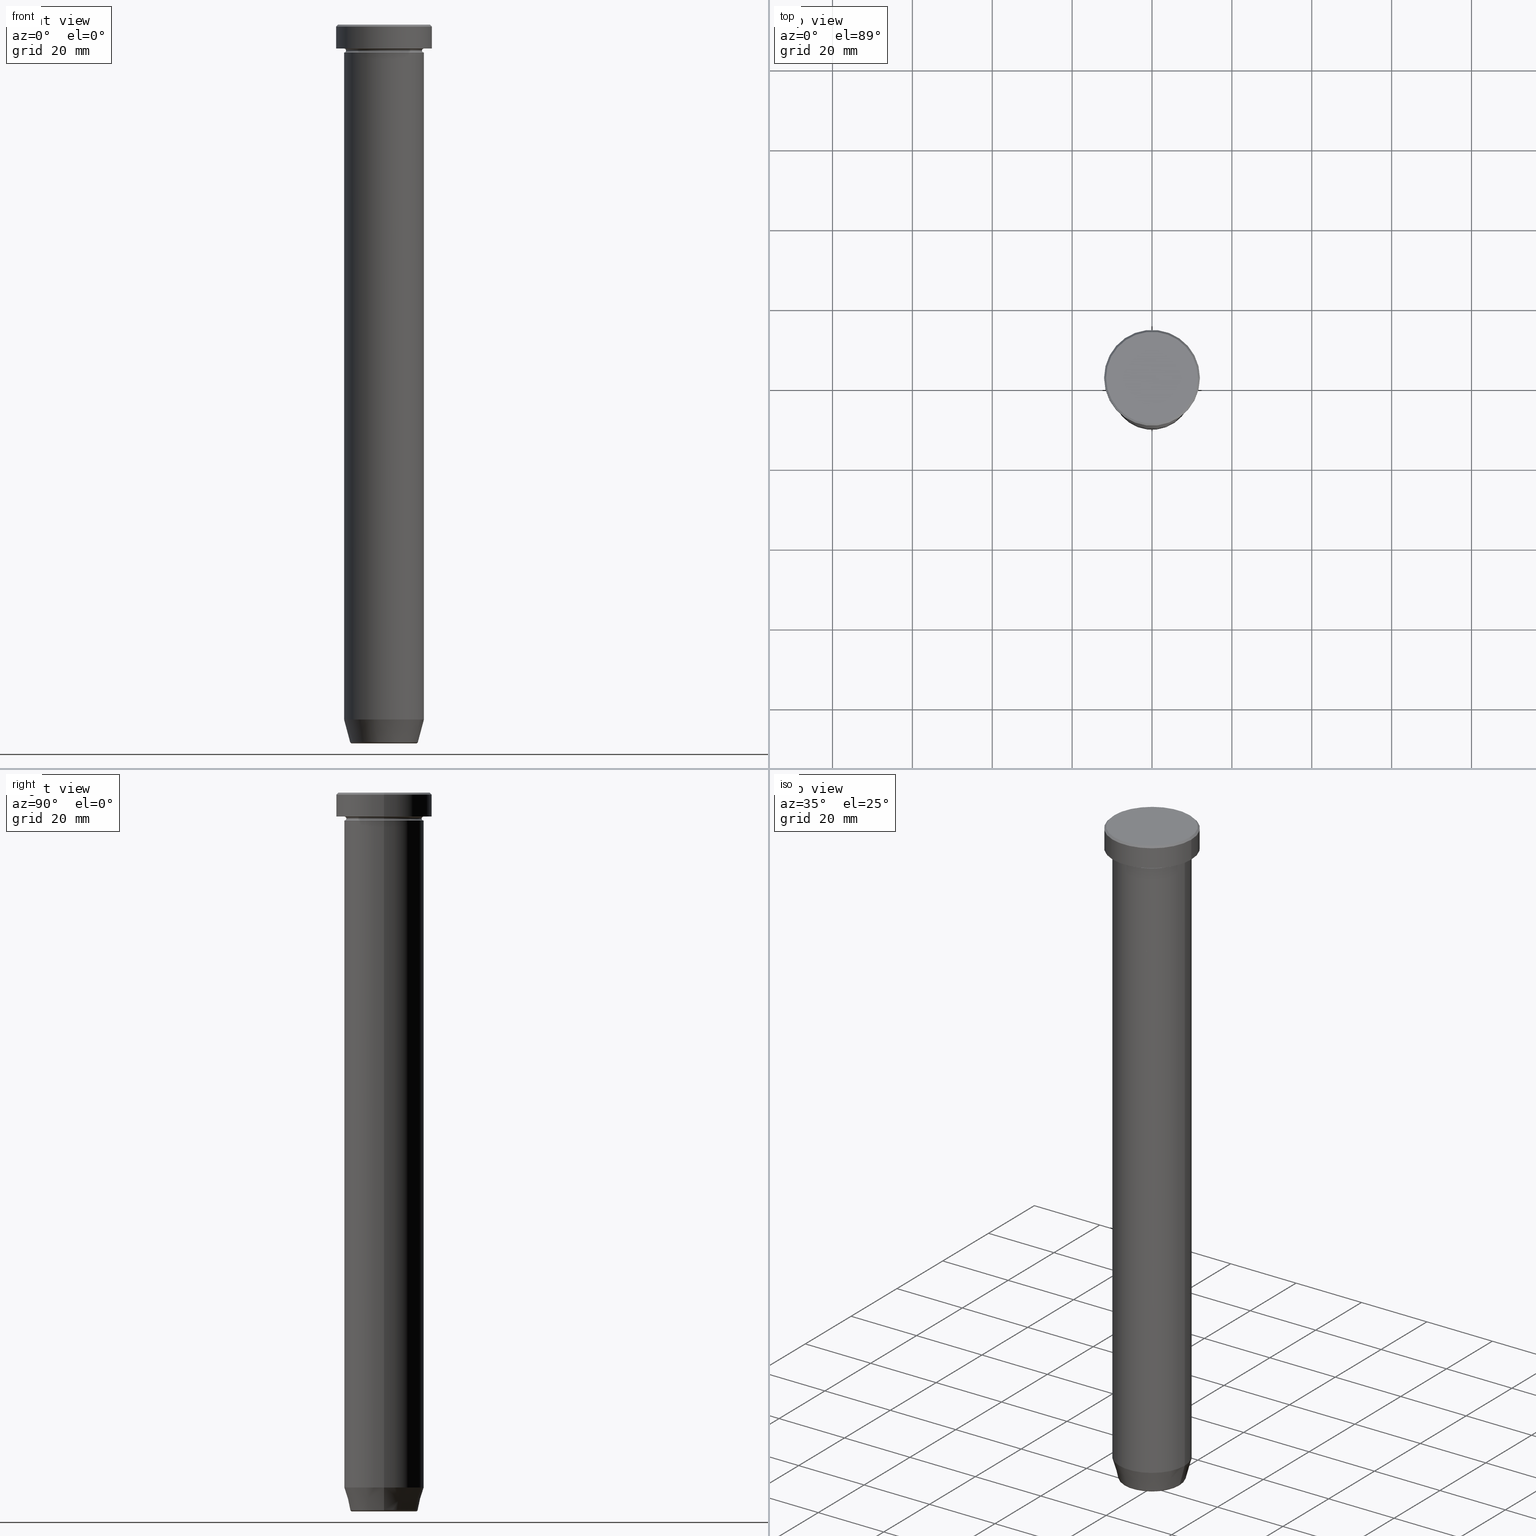
[diagram: canonical four-view strip — front | top / right | iso, engineering-drawing reading convention]
A machine part, canonical four-view strip (front | top / right | iso — engineering-drawing reading convention). The complete STEP part file that produces these views, byte-faithful:
ISO-10303-21;
HEADER;
FILE_DESCRIPTION (( 'STEP AP203' ),
    '1' );
FILE_NAME ('a374.STEP',
    '2024-01-02T20:47:37',
    ( '' ),
    ( '' ),
    'SwSTEP 2.0',
    'SolidWorks 2019',
    '' );
FILE_SCHEMA (( 'CONFIG_CONTROL_DESIGN' ));
ENDSEC;

DATA;
#1 = CARTESIAN_POINT ( 'NONE',  ( -8.008641351423783306, 1.010348648938493172E-15, -180.0000000000000000 ) ) ;
#2 = FACE_OUTER_BOUND ( 'NONE', #112, .T. ) ;
#3 = FACE_OUTER_BOUND ( 'NONE', #350, .T. ) ;
#4 = ADVANCED_FACE ( 'NONE', ( #260 ), #434, .T. ) ;
#5 = DIRECTION ( 'NONE',  ( 0.000000000000000000, 0.000000000000000000, -1.000000000000000000 ) ) ;
#6 = AXIS2_PLACEMENT_3D ( 'NONE', #343, #294, #390 ) ;
#7 = CARTESIAN_POINT ( 'NONE',  ( 0.000000000000000000, 0.000000000000000000, -5.999999999999999112 ) ) ;
#8 = DATE_AND_TIME ( #99, #182 ) ;
#9 = FACE_OUTER_BOUND ( 'NONE', #159, .T. ) ;
#10 = EDGE_LOOP ( 'NONE', ( #580, #222 ) ) ;
#11 = LINE ( 'NONE', #521, #52 ) ;
#12 = DIRECTION ( 'NONE',  ( 1.000000000000000000, 0.000000000000000000, 0.000000000000000000 ) ) ;
#13 = DIRECTION ( 'NONE',  ( -0.2588190451025209060, 3.169619151431766790E-17, 0.9659258262890682012 ) ) ;
#14 = EDGE_LOOP ( 'NONE', ( #49, #337 ) ) ;
#15 = DIRECTION ( 'NONE',  ( 1.000000000000000000, 0.000000000000000000, 0.000000000000000000 ) ) ;
#16 = VECTOR ( 'NONE', #281, 1000.000000000000000 ) ;
#17 = AXIS2_PLACEMENT_3D ( 'NONE', #179, #90, #456 ) ;
#18 = CARTESIAN_POINT ( 'NONE',  ( 0.000000000000000000, 0.000000000000000000, -6.999999999999999112 ) ) ;
#19 = CARTESIAN_POINT ( 'NONE',  ( 0.000000000000000000, 0.000000000000000000, -6.499999999999999112 ) ) ;
#20 = EDGE_CURVE ( 'NONE', #353, #210, #567, .T. ) ;
#21 = PERSON_AND_ORGANIZATION ( #129, #435 ) ;
#22 = ORIENTED_EDGE ( 'NONE', *, *, #582, .F. ) ;
#23 = CC_DESIGN_PERSON_AND_ORGANIZATION_ASSIGNMENT ( #498, #174, ( #134 ) ) ;
#24 = AXIS2_PLACEMENT_3D ( 'NONE', #101, #61, #12 ) ;
#25 = CIRCLE ( 'NONE', #166, 10.00000000000000000 ) ;
#26 = ORIENTED_EDGE ( 'NONE', *, *, #212, .F. ) ;
#27 = DIRECTION ( 'NONE',  ( -1.224646799147353207E-16, 1.000000000000000000, 0.000000000000000000 ) ) ;
#28 = DIRECTION ( 'NONE',  ( 0.000000000000000000, 0.000000000000000000, -1.000000000000000000 ) ) ;
#29 = EDGE_CURVE ( 'NONE', #359, #407, #262, .T. ) ;
#30 = EDGE_LOOP ( 'NONE', ( #342, #541, #298, #158 ) ) ;
#31 = DIRECTION ( 'NONE',  ( -0.000000000000000000, -0.000000000000000000, 1.000000000000000000 ) ) ;
#32 = CARTESIAN_POINT ( 'NONE',  ( 0.000000000000000000, 0.000000000000000000, -179.5000000000000000 ) ) ;
#33 = ORIENTED_EDGE ( 'NONE', *, *, #310, .F. ) ;
#34 = CIRCLE ( 'NONE', #72, 10.00000000000000000 ) ;
#35 = EDGE_CURVE ( 'NONE', #389, #347, #422, .T. ) ;
#36 = FACE_OUTER_BOUND ( 'NONE', #14, .T. ) ;
#37 = COORDINATED_UNIVERSAL_TIME_OFFSET ( 1, 0, .AHEAD. ) ;
#38 = DIRECTION ( 'NONE',  ( 0.000000000000000000, 0.000000000000000000, -1.000000000000000000 ) ) ;
#39 = DIRECTION ( 'NONE',  ( 1.000000000000000000, 0.000000000000000000, 0.000000000000000000 ) ) ;
#40 = PRODUCT_DEFINITION_FORMATION_WITH_SPECIFIED_SOURCE ( 'LIBOVOLN�', '', #336, .NOT_KNOWN. ) ;
#41 = CIRCLE ( 'NONE', #202, 10.00000000000000000 ) ;
#42 = DATE_AND_TIME ( #84, #379 ) ;
#43 = CARTESIAN_POINT ( 'NONE',  ( 0.000000000000000000, 0.000000000000000000, -6.499999999999999112 ) ) ;
#44 = ADVANCED_FACE ( 'NONE', ( #476 ), #283, .T. ) ;
#45 = FACE_OUTER_BOUND ( 'NONE', #348, .T. ) ;
#46 = FACE_OUTER_BOUND ( 'NONE', #502, .T. ) ;
#47 = DIRECTION ( 'NONE',  ( 1.000000000000000000, 0.000000000000000000, 0.000000000000000000 ) ) ;
#48 = DIRECTION ( 'NONE',  ( -1.000000000000000000, 0.000000000000000000, 0.000000000000000000 ) ) ;
#49 = ORIENTED_EDGE ( 'NONE', *, *, #64, .F. ) ;
#50 = CARTESIAN_POINT ( 'NONE',  ( -11.49999999999999467, 0.000000000000000000, 0.000000000000000000 ) ) ;
#51 = DIRECTION ( 'NONE',  ( -1.000000000000000000, 0.000000000000000000, -0.000000000000000000 ) ) ;
#52 = VECTOR ( 'NONE', #98, 1000.000000000000000 ) ;
#53 = EDGE_CURVE ( 'NONE', #532, #120, #41, .T. ) ;
#54 = CIRCLE ( 'NONE', #324, 10.00000000000000000 ) ;
#55 = CARTESIAN_POINT ( 'NONE',  ( 10.00000000000000000, 0.000000000000000000, -6.499999999999999112 ) ) ;
#56 = CARTESIAN_POINT ( 'NONE',  ( 0.000000000000000000, 0.000000000000000000, 0.000000000000000000 ) ) ;
#57 = DIRECTION ( 'NONE',  ( 0.000000000000000000, 0.000000000000000000, -1.000000000000000000 ) ) ;
#58 = ORIENTED_EDGE ( 'NONE', *, *, #484, .T. ) ;
#59 = FACE_OUTER_BOUND ( 'NONE', #335, .T. ) ;
#60 = DIRECTION ( 'NONE',  ( -0.000000000000000000, -0.000000000000000000, 1.000000000000000000 ) ) ;
#61 = DIRECTION ( 'NONE',  ( 0.000000000000000000, 0.000000000000000000, -1.000000000000000000 ) ) ;
#62 = CIRCLE ( 'NONE', #391, 12.00000000000000000 ) ;
#63 = LOCAL_TIME ( 21, 47, 37.00000000000000000, #598 ) ;
#64 = EDGE_CURVE ( 'NONE', #490, #226, #374, .T. ) ;
#65 =( LENGTH_UNIT ( ) NAMED_UNIT ( * ) SI_UNIT ( .MILLI., .METRE. ) );
#66 = ORIENTED_EDGE ( 'NONE', *, *, #292, .F. ) ;
#67 = EDGE_LOOP ( 'NONE', ( #338, #388, #274, #253 ) ) ;
#68 = ORIENTED_EDGE ( 'NONE', *, *, #227, .F. ) ;
#69 = DIRECTION ( 'NONE',  ( -0.000000000000000000, -0.000000000000000000, 1.000000000000000000 ) ) ;
#70 = APPROVAL_STATUS ( 'not_yet_approved' ) ;
#71 = EDGE_CURVE ( 'NONE', #515, #91, #513, .T. ) ;
#72 = AXIS2_PLACEMENT_3D ( 'NONE', #186, #305, #397 ) ;
#73 = AXIS2_PLACEMENT_3D ( 'NONE', #242, #236, #576 ) ;
#74 = ORIENTED_EDGE ( 'NONE', *, *, #396, .T. ) ;
#75 = DIRECTION ( 'NONE',  ( 1.000000000000000000, 0.000000000000000000, 0.000000000000000000 ) ) ;
#76 = ORIENTED_EDGE ( 'NONE', *, *, #280, .T. ) ;
#77 = ORIENTED_EDGE ( 'NONE', *, *, #582, .T. ) ;
#78 = DIRECTION ( 'NONE',  ( -1.000000000000000000, -1.224646799147353454E-16, 0.000000000000000000 ) ) ;
#79 = EDGE_LOOP ( 'NONE', ( #583, #257, #249, #432 ) ) ;
#80 = LOCAL_TIME ( 21, 47, 37.00000000000000000, #117 ) ;
#81 = ORIENTED_EDGE ( 'NONE', *, *, #29, .F. ) ;
#82 = DIRECTION ( 'NONE',  ( 0.000000000000000000, -0.000000000000000000, 1.000000000000000000 ) ) ;
#83 = ADVANCED_FACE ( 'NONE', ( #528 ), #279, .T. ) ;
#84 = CALENDAR_DATE ( 2024, 2, 1 ) ;
#85 = FACE_OUTER_BOUND ( 'NONE', #496, .T. ) ;
#86 = DIRECTION ( 'NONE',  ( 1.000000000000000000, 0.000000000000000000, 0.000000000000000000 ) ) ;
#87 = CARTESIAN_POINT ( 'NONE',  ( -12.00000000000000000, 1.469576158976823947E-15, 0.000000000000000000 ) ) ;
#88 = ADVANCED_FACE ( 'NONE', ( #147 ), #318, .T. ) ;
#89 = DIRECTION ( 'NONE',  ( 1.000000000000000000, 0.000000000000000000, 0.000000000000000000 ) ) ;
#90 = DIRECTION ( 'NONE',  ( -0.000000000000000000, -0.000000000000000000, 1.000000000000000000 ) ) ;
#91 = VERTEX_POINT ( 'NONE', #372 ) ;
#92 = AXIS2_PLACEMENT_3D ( 'NONE', #139, #5, #448 ) ;
#93 = TOROIDAL_SURFACE ( 'NONE', #110, 10.00000000000000000, 0.5000000000000000000 ) ;
#94 = PLANE ( 'NONE',  #92 ) ;
#95 = APPROVAL ( #70, 'NEUR�EN�' ) ;
#96 = DIRECTION ( 'NONE',  ( 1.224646799147353207E-16, 1.000000000000000000, 0.000000000000000000 ) ) ;
#97 = ORIENTED_EDGE ( 'NONE', *, *, #280, .F. ) ;
#98 = DIRECTION ( 'NONE',  ( 0.2588190451025209060, 0.000000000000000000, 0.9659258262890682012 ) ) ;
#99 = CALENDAR_DATE ( 2024, 2, 1 ) ;
#100 = FACE_BOUND ( 'NONE', #315, .T. ) ;
#101 = CARTESIAN_POINT ( 'NONE',  ( 0.000000000000000000, 0.000000000000000000, -0.5000000000000056621 ) ) ;
#102 = CARTESIAN_POINT ( 'NONE',  ( 0.000000000000000000, 0.000000000000000000, 0.000000000000000000 ) ) ;
#103 = APPROVAL_PERSON_ORGANIZATION ( #483, #95, #433 ) ;
#104 = ADVANCED_FACE ( 'NONE', ( #150 ), #401, .T. ) ;
#105 = CIRCLE ( 'NONE', #514, 9.999999999999998224 ) ;
#106 = DIRECTION ( 'NONE',  ( 1.224646799147353207E-16, 1.000000000000000000, 0.000000000000000000 ) ) ;
#107 = FACE_OUTER_BOUND ( 'NONE', #67, .T. ) ;
#108 = EDGE_CURVE ( 'NONE', #515, #389, #156, .T. ) ;
#109 = AXIS2_PLACEMENT_3D ( 'NONE', #102, #60, #527 ) ;
#110 = AXIS2_PLACEMENT_3D ( 'NONE', #306, #137, #48 ) ;
#111 = DIRECTION ( 'NONE',  ( -1.000000000000000000, 0.000000000000000000, 0.000000000000000000 ) ) ;
#112 = EDGE_LOOP ( 'NONE', ( #578, #440, #574, #22 ) ) ;
#113 = VERTEX_POINT ( 'NONE', #1 ) ;
#114 = DIRECTION ( 'NONE',  ( 1.000000000000000000, 0.000000000000000000, 0.000000000000000000 ) ) ;
#115 = EDGE_CURVE ( 'NONE', #207, #210, #550, .T. ) ;
#116 = DIRECTION ( 'NONE',  ( 0.000000000000000000, 0.000000000000000000, -1.000000000000000000 ) ) ;
#117 = COORDINATED_UNIVERSAL_TIME_OFFSET ( 1, 0, .AHEAD. ) ;
#118 = VECTOR ( 'NONE', #175, 1000.000000000000000 ) ;
#119 = CIRCLE ( 'NONE', #144, 0.5000000000000004441 ) ;
#120 = VERTEX_POINT ( 'NONE', #259 ) ;
#121 = CARTESIAN_POINT ( 'NONE',  ( -10.00000000000000000, 0.000000000000000000, -6.000000000000000000 ) ) ;
#122 = ORIENTED_EDGE ( 'NONE', *, *, #108, .F. ) ;
#123 = DIRECTION ( 'NONE',  ( -0.000000000000000000, -0.000000000000000000, 1.000000000000000000 ) ) ;
#124 = DATE_TIME_ROLE ( 'creation_date' ) ;
#125 = ORIENTED_EDGE ( 'NONE', *, *, #181, .F. ) ;
#126 = ADVANCED_FACE ( 'NONE', ( #46 ), #131, .F. ) ;
#127 = ORIENTED_EDGE ( 'NONE', *, *, #310, .T. ) ;
#128 = ORIENTED_EDGE ( 'NONE', *, *, #35, .F. ) ;
#129 = PERSON ( 'NEUR�EN�', 'NEUR�EN�', 'NEUR�EN�', ('NEUR�EN�'), ('NEUR�EN�'), ('NEUR�EN�') ) ;
#130 = DIRECTION ( 'NONE',  ( 0.000000000000000000, -0.000000000000000000, 1.000000000000000000 ) ) ;
#131 = TOROIDAL_SURFACE ( 'NONE', #499, 10.00000000000000000, 0.5000000000000000000 ) ;
#132 = ORIENTED_EDGE ( 'NONE', *, *, #415, .F. ) ;
#133 = DIRECTION ( 'NONE',  ( -0.000000000000000000, -0.000000000000000000, 1.000000000000000000 ) ) ;
#134 = PRODUCT_DEFINITION ( 'NEZN�M�', '', #40, #328 ) ;
#135 = AXIS2_PLACEMENT_3D ( 'NONE', #370, #469, #111 ) ;
#136 = AXIS2_PLACEMENT_3D ( 'NONE', #419, #311, #47 ) ;
#137 = DIRECTION ( 'NONE',  ( 0.000000000000000000, 0.000000000000000000, -1.000000000000000000 ) ) ;
#138 = EDGE_CURVE ( 'NONE', #226, #516, #255, .T. ) ;
#139 = CARTESIAN_POINT ( 'NONE',  ( 0.000000000000000000, 10.00000000000000000, -30.00000000000000000 ) ) ;
#140 = DIRECTION ( 'NONE',  ( -0.000000000000000000, -0.000000000000000000, 1.000000000000000000 ) ) ;
#141 = DIRECTION ( 'NONE',  ( 0.000000000000000000, 0.000000000000000000, -1.000000000000000000 ) ) ;
#142 = CC_DESIGN_DATE_AND_TIME_ASSIGNMENT ( #42, #367, ( #512 ) ) ;
#143 = CLOSED_SHELL ( 'NONE', ( #205, #4, #547, #304, #44, #384, #154, #363 ) ) ;
#144 = AXIS2_PLACEMENT_3D ( 'NONE', #561, #96, #517 ) ;
#145 = DIRECTION ( 'NONE',  ( -1.000000000000000000, 0.000000000000000000, 0.000000000000000000 ) ) ;
#146 = CARTESIAN_POINT ( 'NONE',  ( -11.49999999999999467, 0.000000000000000000, 0.000000000000000000 ) ) ;
#147 = FACE_OUTER_BOUND ( 'NONE', #252, .T. ) ;
#148 = ADVANCED_FACE ( 'NONE', ( #264 ), #94, .T. ) ;
#149 = LINE ( 'NONE', #564, #16 ) ;
#150 = FACE_OUTER_BOUND ( 'NONE', #303, .T. ) ;
#151 = CYLINDRICAL_SURFACE ( 'NONE', #383, 10.00000000000000000 ) ;
#152 = CIRCLE ( 'NONE', #487, 10.00000000000000000 ) ;
#153 = TOROIDAL_SURFACE ( 'NONE', #488, 10.00000000000000000, 0.5000000000000000000 ) ;
#154 = ADVANCED_FACE ( 'NONE', ( #216 ), #225, .F. ) ;
#155 = CARTESIAN_POINT ( 'NONE',  ( 0.000000000000000000, 0.000000000000000000, -6.000000000000000000 ) ) ;
#156 = CIRCLE ( 'NONE', #411, 0.5000000000000004441 ) ;
#157 = AXIS2_PLACEMENT_3D ( 'NONE', #362, #503, #313 ) ;
#158 = ORIENTED_EDGE ( 'NONE', *, *, #273, .F. ) ;
#159 = EDGE_LOOP ( 'NONE', ( #287, #386, #544, #209 ) ) ;
#160 = DIRECTION ( 'NONE',  ( -0.000000000000000000, -0.000000000000000000, 1.000000000000000000 ) ) ;
#161 = ORIENTED_EDGE ( 'NONE', *, *, #573, .F. ) ;
#162 = SECURITY_CLASSIFICATION_LEVEL ( 'unclassified' ) ;
#163 = VERTEX_POINT ( 'NONE', #301 ) ;
#164 = CALENDAR_DATE ( 2024, 2, 1 ) ;
#165 = AXIS2_PLACEMENT_3D ( 'NONE', #425, #414, #145 ) ;
#166 = AXIS2_PLACEMENT_3D ( 'NONE', #299, #482, #290 ) ;
#167 = ORIENTED_EDGE ( 'NONE', *, *, #403, .F. ) ;
#168 = ORIENTED_EDGE ( 'NONE', *, *, #273, .T. ) ;
#169 = CARTESIAN_POINT ( 'NONE',  ( 8.008641351423783306, 0.000000000000000000, -180.0000000000000000 ) ) ;
#170 = ORIENTED_EDGE ( 'NONE', *, *, #71, .F. ) ;
#171 = CARTESIAN_POINT ( 'NONE',  ( 0.000000000000000000, 0.000000000000000000, -180.0000000000000000 ) ) ;
#172 = ORIENTED_EDGE ( 'NONE', *, *, #35, .T. ) ;
#173 = CARTESIAN_POINT ( 'NONE',  ( -9.999999999999998224, 1.224646799147353059E-15, 0.000000000000000000 ) ) ;
#174 = PERSON_AND_ORGANIZATION_ROLE ( 'creator' ) ;
#175 = DIRECTION ( 'NONE',  ( -0.000000000000000000, -0.000000000000000000, 1.000000000000000000 ) ) ;
#176 = CC_DESIGN_APPROVAL ( #377, ( #512 ) ) ;
#177 = VECTOR ( 'NONE', #361, 1000.000000000000114 ) ;
#178 = CARTESIAN_POINT ( 'NONE',  ( 0.000000000000000000, 0.000000000000000000, -30.00000000000000000 ) ) ;
#179 = CARTESIAN_POINT ( 'NONE',  ( 0.000000000000000000, 0.000000000000000000, 0.000000000000000000 ) ) ;
#180 = CIRCLE ( 'NONE', #314, 8.491604264568307414 ) ;
#181 = EDGE_CURVE ( 'NONE', #120, #443, #452, .T. ) ;
#182 = LOCAL_TIME ( 21, 47, 37.00000000000000000, #519 ) ;
#183 = CARTESIAN_POINT ( 'NONE',  ( 0.000000000000000000, 1.592040838891559450E-14, -180.0000000000000000 ) ) ;
#184 = CARTESIAN_POINT ( 'NONE',  ( 11.49999999999999467, 1.408343819019455584E-15, 0.000000000000000000 ) ) ;
#185 = CARTESIAN_POINT ( 'NONE',  ( 0.000000000000000000, 0.000000000000000000, -0.5000000000000056621 ) ) ;
#186 = CARTESIAN_POINT ( 'NONE',  ( 0.000000000000000000, 0.000000000000000000, -30.00000000000000000 ) ) ;
#187 = CARTESIAN_POINT ( 'NONE',  ( -9.500000000000000000, 1.194030629168669469E-15, -6.499999999999999112 ) ) ;
#188 = DIRECTION ( 'NONE',  ( 1.000000000000000000, 0.000000000000000000, 0.000000000000000000 ) ) ;
#189 = ORIENTED_EDGE ( 'NONE', *, *, #403, .T. ) ;
#190 = AXIS2_PLACEMENT_3D ( 'NONE', #32, #133, #214 ) ;
#191 = ADVANCED_FACE ( 'NONE', ( #85 ), #398, .T. ) ;
#192 = DIRECTION ( 'NONE',  ( -0.000000000000000000, -0.000000000000000000, 1.000000000000000000 ) ) ;
#193 = DIRECTION ( 'NONE',  ( -1.000000000000000000, 1.224646799147353454E-16, 0.000000000000000000 ) ) ;
#194 = DIRECTION ( 'NONE',  ( 1.000000000000000000, 0.000000000000000000, 0.000000000000000000 ) ) ;
#195 = CARTESIAN_POINT ( 'NONE',  ( 0.000000000000000000, 0.000000000000000000, 0.000000000000000000 ) ) ;
#196 = EDGE_CURVE ( 'NONE', #210, #353, #34, .T. ) ;
#197 = AXIS2_PLACEMENT_3D ( 'NONE', #56, #416, #194 ) ;
#198 = AXIS2_PLACEMENT_3D ( 'NONE', #316, #453, #509 ) ;
#199 = DIRECTION ( 'NONE',  ( -0.000000000000000000, -0.000000000000000000, 1.000000000000000000 ) ) ;
#200 = ORIENTED_EDGE ( 'NONE', *, *, #53, .T. ) ;
#201 = VERTEX_POINT ( 'NONE', #454 ) ;
#202 = AXIS2_PLACEMENT_3D ( 'NONE', #237, #241, #412 ) ;
#203 = CIRCLE ( 'NONE', #568, 9.999999999999998224 ) ;
#204 = VECTOR ( 'NONE', #472, 1000.000000000000000 ) ;
#205 = ADVANCED_FACE ( 'NONE', ( #591 ), #368, .T. ) ;
#206 = DIRECTION ( 'NONE',  ( -0.000000000000000000, -1.000000000000000000, -0.000000000000000000 ) ) ;
#207 = VERTEX_POINT ( 'NONE', #546 ) ;
#208 = EDGE_LOOP ( 'NONE', ( #132, #189, #393, #254 ) ) ;
#209 = ORIENTED_EDGE ( 'NONE', *, *, #115, .F. ) ;
#210 = VERTEX_POINT ( 'NONE', #284 ) ;
#211 = CARTESIAN_POINT ( 'NONE',  ( 12.00000000000000000, 0.000000000000000000, -0.5000000000000056621 ) ) ;
#212 = EDGE_CURVE ( 'NONE', #532, #355, #149, .T. ) ;
#213 = ORIENTED_EDGE ( 'NONE', *, *, #243, .T. ) ;
#214 = DIRECTION ( 'NONE',  ( 1.000000000000000000, 0.000000000000000000, 0.000000000000000000 ) ) ;
#215 = APPROVAL_STATUS ( 'not_yet_approved' ) ;
#216 = FACE_OUTER_BOUND ( 'NONE', #334, .T. ) ;
#217 = CARTESIAN_POINT ( 'NONE',  ( 0.000000000000000000, 0.000000000000000000, -174.0000000000000000 ) ) ;
#218 = ORIENTED_EDGE ( 'NONE', *, *, #560, .F. ) ;
#219 = CALENDAR_DATE ( 2024, 2, 1 ) ;
#220 = DIRECTION ( 'NONE',  ( 1.000000000000000000, 0.000000000000000000, 0.000000000000000000 ) ) ;
#221 = EDGE_CURVE ( 'NONE', #201, #494, #244, .T. ) ;
#222 = ORIENTED_EDGE ( 'NONE', *, *, #20, .T. ) ;
#223 = CARTESIAN_POINT ( 'NONE',  ( 0.000000000000000000, 0.000000000000000000, -6.000000000000000000 ) ) ;
#224 = AXIS2_PLACEMENT_3D ( 'NONE', #171, #116, #486 ) ;
#225 = PLANE ( 'NONE',  #239 ) ;
#226 = VERTEX_POINT ( 'NONE', #518 ) ;
#227 = EDGE_CURVE ( 'NONE', #516, #407, #312, .T. ) ;
#228 = CARTESIAN_POINT ( 'NONE',  ( 8.491604264568307414, 0.000000000000000000, -179.6294095225512706 ) ) ;
#229 = APPROVAL_DATE_TIME ( #475, #95 ) ;
#230 = CIRCLE ( 'NONE', #344, 10.00000000000000000 ) ;
#231 = CIRCLE ( 'NONE', #500, 9.500000000000000000 ) ;
#232 = DIRECTION ( 'NONE',  ( 0.000000000000000000, -1.000000000000000000, 0.000000000000000000 ) ) ;
#233 = APPROVAL_STATUS ( 'not_yet_approved' ) ;
#234 = FACE_OUTER_BOUND ( 'NONE', #10, .T. ) ;
#235 = EDGE_CURVE ( 'NONE', #443, #355, #230, .T. ) ;
#236 = DIRECTION ( 'NONE',  ( -0.000000000000000000, -0.000000000000000000, 1.000000000000000000 ) ) ;
#237 = CARTESIAN_POINT ( 'NONE',  ( 0.000000000000000000, 0.000000000000000000, -30.00000000000000000 ) ) ;
#238 = APPROVAL ( #215, 'NEUR�EN�' ) ;
#239 = AXIS2_PLACEMENT_3D ( 'NONE', #183, #130, #220 ) ;
#240 = VECTOR ( 'NONE', #354, 1000.000000000000000 ) ;
#241 = DIRECTION ( 'NONE',  ( -0.000000000000000000, -0.000000000000000000, 1.000000000000000000 ) ) ;
#242 = CARTESIAN_POINT ( 'NONE',  ( 0.000000000000000000, 0.000000000000000000, -6.499999999999999112 ) ) ;
#243 = EDGE_CURVE ( 'NONE', #226, #490, #62, .T. ) ;
#244 = CIRCLE ( 'NONE', #165, 8.491604264568307414 ) ;
#245 = AXIS2_PLACEMENT_3D ( 'NONE', #185, #461, #404 ) ;
#246 = LOCAL_TIME ( 21, 47, 37.00000000000000000, #37 ) ;
#247 = EDGE_CURVE ( 'NONE', #515, #443, #356, .T. ) ;
#248 = VERTEX_POINT ( 'NONE', #50 ) ;
#249 = ORIENTED_EDGE ( 'NONE', *, *, #424, .F. ) ;
#250 = SHAPE_DEFINITION_REPRESENTATION ( #477, #327 ) ;
#251 = PERSON_AND_ORGANIZATION ( #129, #435 ) ;
#252 = EDGE_LOOP ( 'NONE', ( #562, #213, #127, #58 ) ) ;
#253 = ORIENTED_EDGE ( 'NONE', *, *, #376, .T. ) ;
#254 = ORIENTED_EDGE ( 'NONE', *, *, #20, .F. ) ;
#255 = LINE ( 'NONE', #87, #118 ) ;
#256 = CONICAL_SURFACE ( 'NONE', #357, 8.392304845413260495, 0.2617993877991495744 ) ;
#257 = ORIENTED_EDGE ( 'NONE', *, *, #520, .T. ) ;
#258 = CARTESIAN_POINT ( 'NONE',  ( 10.00000000000000000, 0.000000000000000000, -6.999999999999999112 ) ) ;
#259 = CARTESIAN_POINT ( 'NONE',  ( -10.00000000000000000, 1.224646799147353256E-15, -30.00000000000000000 ) ) ;
#260 = FACE_OUTER_BOUND ( 'NONE', #30, .T. ) ;
#261 = CARTESIAN_POINT ( 'NONE',  ( -12.00000000000000000, 1.469576158976823947E-15, -0.5000000000000056621 ) ) ;
#262 = LINE ( 'NONE', #184, #177 ) ;
#263 = LINE ( 'NONE', #146, #332 ) ;
#264 = FACE_OUTER_BOUND ( 'NONE', #276, .T. ) ;
#265 = CC_DESIGN_SECURITY_CLASSIFICATION ( #512, ( #40 ) ) ;
#266 =( NAMED_UNIT ( * ) PLANE_ANGLE_UNIT ( ) SI_UNIT ( $, .RADIAN. ) );
#267 = VECTOR ( 'NONE', #460, 1000.000000000000000 ) ;
#268 = ORIENTED_EDGE ( 'NONE', *, *, #64, .T. ) ;
#269 = CIRCLE ( 'NONE', #245, 12.00000000000000000 ) ;
#270 = CARTESIAN_POINT ( 'NONE',  ( 0.000000000000000000, 0.000000000000000000, 0.000000000000000000 ) ) ;
#271 = ORIENTED_EDGE ( 'NONE', *, *, #396, .F. ) ;
#272 = DIRECTION ( 'NONE',  ( -0.000000000000000000, -0.000000000000000000, 1.000000000000000000 ) ) ;
#273 = EDGE_CURVE ( 'NONE', #494, #207, #11, .T. ) ;
#274 = ORIENTED_EDGE ( 'NONE', *, *, #292, .T. ) ;
#275 = CC_DESIGN_PERSON_AND_ORGANIZATION_ASSIGNMENT ( #21, #378, ( #512 ) ) ;
#276 = EDGE_LOOP ( 'NONE', ( #588, #97 ) ) ;
#277 = DIRECTION ( 'NONE',  ( -0.000000000000000000, -0.000000000000000000, 1.000000000000000000 ) ) ;
#278 = DIRECTION ( 'NONE',  ( -1.000000000000000000, 0.000000000000000000, 0.000000000000000000 ) ) ;
#279 = CONICAL_SURFACE ( 'NONE', #135, 11.49999999999999467, 0.7853981633974482790 ) ;
#280 = EDGE_CURVE ( 'NONE', #120, #532, #152, .T. ) ;
#281 = DIRECTION ( 'NONE',  ( -0.000000000000000000, -0.000000000000000000, 1.000000000000000000 ) ) ;
#282 = CARTESIAN_POINT ( 'NONE',  ( 12.00000000000000000, 0.000000000000000000, 0.000000000000000000 ) ) ;
#283 = CYLINDRICAL_SURFACE ( 'NONE', #109, 9.999999999999998224 ) ;
#284 = CARTESIAN_POINT ( 'NONE',  ( 10.00000000000000000, 0.000000000000000000, -30.00000000000000000 ) ) ;
#285 = AXIS2_PLACEMENT_3D ( 'NONE', #493, #82, #592 ) ;
#286 = ORIENTED_EDGE ( 'NONE', *, *, #376, .F. ) ;
#287 = ORIENTED_EDGE ( 'NONE', *, *, #445, .T. ) ;
#288 = PERSON_AND_ORGANIZATION_ROLE ( 'creator' ) ;
#289 = ORIENTED_EDGE ( 'NONE', *, *, #524, .T. ) ;
#290 = DIRECTION ( 'NONE',  ( 1.000000000000000000, 0.000000000000000000, 0.000000000000000000 ) ) ;
#291 = AXIS2_PLACEMENT_3D ( 'NONE', #465, #141, #51 ) ;
#292 = EDGE_CURVE ( 'NONE', #91, #355, #402, .T. ) ;
#293 = ORIENTED_EDGE ( 'NONE', *, *, #492, .T. ) ;
#294 = DIRECTION ( 'NONE',  ( 0.000000000000000000, 0.000000000000000000, -1.000000000000000000 ) ) ;
#295 = CC_DESIGN_PERSON_AND_ORGANIZATION_ASSIGNMENT ( #251, #579, ( #40 ) ) ;
#296 = DIRECTION ( 'NONE',  ( -0.000000000000000000, -0.000000000000000000, 1.000000000000000000 ) ) ;
#297 = ORIENTED_EDGE ( 'NONE', *, *, #221, .T. ) ;
#298 = ORIENTED_EDGE ( 'NONE', *, *, #445, .F. ) ;
#299 = CARTESIAN_POINT ( 'NONE',  ( 0.000000000000000000, 0.000000000000000000, -6.999999999999999112 ) ) ;
#300 = VECTOR ( 'NONE', #366, 1000.000000000000000 ) ;
#301 = CARTESIAN_POINT ( 'NONE',  ( -9.999999999999998224, 1.224646799147353059E-15, -174.0000000000000000 ) ) ;
#302 = AXIS2_PLACEMENT_3D ( 'NONE', #555, #508, #408 ) ;
#303 = EDGE_LOOP ( 'NONE', ( #81, #161, #289, #479 ) ) ;
#304 = ADVANCED_FACE ( 'NONE', ( #234 ), #417, .F. ) ;
#305 = DIRECTION ( 'NONE',  ( -0.000000000000000000, -0.000000000000000000, 1.000000000000000000 ) ) ;
#306 = CARTESIAN_POINT ( 'NONE',  ( 0.000000000000000000, 0.000000000000000000, -6.500000000000000888 ) ) ;
#307 = APPLICATION_CONTEXT ( 'configuration controlled 3d designs of mechanical parts and assemblies' ) ;
#308 = CARTESIAN_POINT ( 'NONE',  ( 12.00000000000000000, 0.000000000000000000, -5.999999999999999112 ) ) ;
#309 = PERSON_AND_ORGANIZATION_ROLE ( 'design_owner' ) ;
#310 = EDGE_CURVE ( 'NONE', #490, #407, #525, .T. ) ;
#311 = DIRECTION ( 'NONE',  ( 0.000000000000000000, 0.000000000000000000, 1.000000000000000000 ) ) ;
#312 = CIRCLE ( 'NONE', #24, 12.00000000000000000 ) ;
#313 = DIRECTION ( 'NONE',  ( 0.000000000000000000, 0.000000000000000000, -1.000000000000000000 ) ) ;
#314 = AXIS2_PLACEMENT_3D ( 'NONE', #439, #31, #387 ) ;
#315 = EDGE_LOOP ( 'NONE', ( #172, #77 ) ) ;
#316 = CARTESIAN_POINT ( 'NONE',  ( 0.000000000000000000, 0.000000000000000000, 0.000000000000000000 ) ) ;
#317 = DIRECTION ( 'NONE',  ( 1.000000000000000000, 0.000000000000000000, 0.000000000000000000 ) ) ;
#318 = CYLINDRICAL_SURFACE ( 'NONE', #197, 12.00000000000000000 ) ;
#319 = DIRECTION ( 'NONE',  ( -1.000000000000000000, 0.000000000000000000, 0.000000000000000000 ) ) ;
#320 = ADVANCED_FACE ( 'NONE', ( #59 ), #549, .F. ) ;
#321 = DIRECTION ( 'NONE',  ( 1.000000000000000000, 0.000000000000000000, 0.000000000000000000 ) ) ;
#322 = CARTESIAN_POINT ( 'NONE',  ( 0.000000000000000000, 0.000000000000000000, 0.000000000000000000 ) ) ;
#323 = CLOSED_SHELL ( 'NONE', ( #83, #126, #320, #191, #505, #148, #340, #88, #537, #594, #329, #466, #104 ) ) ;
#324 = AXIS2_PLACEMENT_3D ( 'NONE', #155, #199, #319 ) ;
#325 = CARTESIAN_POINT ( 'NONE',  ( -10.00000000000000000, 1.224646799147353256E-15, -6.499999999999999112 ) ) ;
#326 = DIRECTION ( 'NONE',  ( -0.000000000000000000, -0.000000000000000000, 1.000000000000000000 ) ) ;
#327 = ADVANCED_BREP_SHAPE_REPRESENTATION ( 'a374', ( #577, #586, #136 ), #413 ) ;
#328 = DESIGN_CONTEXT ( 'detailed design', #341, 'design' ) ;
#329 = ADVANCED_FACE ( 'NONE', ( #107 ), #153, .F. ) ;
#330 = CARTESIAN_POINT ( 'NONE',  ( 0.000000000000000000, 0.000000000000000000, -6.499999999999999112 ) ) ;
#331 = AXIS2_PLACEMENT_3D ( 'NONE', #464, #192, #427 ) ;
#332 = VECTOR ( 'NONE', #365, 1000.000000000000114 ) ;
#333 = COORDINATED_UNIVERSAL_TIME_OFFSET ( 1, 0, .AHEAD. ) ;
#334 = EDGE_LOOP ( 'NONE', ( #74, #381 ) ) ;
#335 = EDGE_LOOP ( 'NONE', ( #170, #380, #545, #66 ) ) ;
#336 = PRODUCT ( 'a374', 'a374', '', ( #406 ) ) ;
#337 = ORIENTED_EDGE ( 'NONE', *, *, #243, .F. ) ;
#338 = ORIENTED_EDGE ( 'NONE', *, *, #247, .F. ) ;
#339 = DIRECTION ( 'NONE',  ( 1.000000000000000000, 0.000000000000000000, 0.000000000000000000 ) ) ;
#340 = ADVANCED_FACE ( 'NONE', ( #45 ), #428, .T. ) ;
#341 = APPLICATION_CONTEXT ( 'configuration controlled 3d designs of mechanical parts and assemblies' ) ;
#342 = ORIENTED_EDGE ( 'NONE', *, *, #424, .T. ) ;
#343 = CARTESIAN_POINT ( 'NONE',  ( 0.000000000000000000, 0.000000000000000000, -180.0000000000000000 ) ) ;
#344 = AXIS2_PLACEMENT_3D ( 'NONE', #18, #421, #15 ) ;
#345 = APPROVAL_DATE_TIME ( #8, #377 ) ;
#346 = CARTESIAN_POINT ( 'NONE',  ( -10.00000000000000000, 1.224646799147353256E-15, -6.999999999999999112 ) ) ;
#347 = VERTEX_POINT ( 'NONE', #497 ) ;
#348 = EDGE_LOOP ( 'NONE', ( #595, #437 ) ) ;
#349 = CALENDAR_DATE ( 2024, 2, 1 ) ;
#350 = EDGE_LOOP ( 'NONE', ( #268, #590, #409, #33 ) ) ;
#351 = APPROVAL_ROLE ( '' ) ;
#352 = EDGE_CURVE ( 'NONE', #91, #347, #423, .T. ) ;
#353 = VERTEX_POINT ( 'NONE', #534 ) ;
#354 = DIRECTION ( 'NONE',  ( -0.000000000000000000, -0.000000000000000000, 1.000000000000000000 ) ) ;
#355 = VERTEX_POINT ( 'NONE', #258 ) ;
#356 = CIRCLE ( 'NONE', #597, 0.5000000000000004441 ) ;
#357 = AXIS2_PLACEMENT_3D ( 'NONE', #444, #589, #339 ) ;
#358 = DIRECTION ( 'NONE',  ( -0.000000000000000000, -0.000000000000000000, 1.000000000000000000 ) ) ;
#359 = VERTEX_POINT ( 'NONE', #581 ) ;
#360 = LINE ( 'NONE', #557, #575 ) ;
#361 = DIRECTION ( 'NONE',  ( 0.7071067811865474617, 8.659560562354932858E-17, -0.7071067811865474617 ) ) ;
#362 = CARTESIAN_POINT ( 'NONE',  ( 8.008641351423783306, 0.000000000000000000, -179.5000000000000000 ) ) ;
#363 = ADVANCED_FACE ( 'NONE', ( #450 ), #478, .T. ) ;
#364 = CARTESIAN_POINT ( 'NONE',  ( 9.999999999999998224, 0.000000000000000000, 0.000000000000000000 ) ) ;
#365 = DIRECTION ( 'NONE',  ( -0.7071067811865474617, 0.000000000000000000, -0.7071067811865474617 ) ) ;
#366 = DIRECTION ( 'NONE',  ( -0.000000000000000000, -0.000000000000000000, 1.000000000000000000 ) ) ;
#367 = DATE_TIME_ROLE ( 'classification_date' ) ;
#368 = TOROIDAL_SURFACE ( 'NONE', #522, 8.008641351423783306, 0.5000000000000000000 ) ;
#369 = CIRCLE ( 'NONE', #224, 8.008641351423783306 ) ;
#370 = CARTESIAN_POINT ( 'NONE',  ( 0.000000000000000000, 0.000000000000000000, 0.000000000000000000 ) ) ;
#371 = CYLINDRICAL_SURFACE ( 'NONE', #302, 12.00000000000000000 ) ;
#372 = CARTESIAN_POINT ( 'NONE',  ( 9.500000000000000000, 0.000000000000000000, -6.499999999999999112 ) ) ;
#373 = CARTESIAN_POINT ( 'NONE',  ( 0.000000000000000000, -1.734723475976807094E-15, -30.00000000000000000 ) ) ;
#374 = CIRCLE ( 'NONE', #331, 12.00000000000000000 ) ;
#375 = CIRCLE ( 'NONE', #6, 8.008641351423783306 ) ;
#376 = EDGE_CURVE ( 'NONE', #355, #443, #25, .T. ) ;
#377 = APPROVAL ( #233, 'NEUR�EN�' ) ;
#378 = PERSON_AND_ORGANIZATION_ROLE ( 'classification_officer' ) ;
#379 = LOCAL_TIME ( 21, 47, 37.00000000000000000, #333 ) ;
#380 = ORIENTED_EDGE ( 'NONE', *, *, #247, .T. ) ;
#381 = ORIENTED_EDGE ( 'NONE', *, *, #430, .T. ) ;
#382 = AXIS2_PLACEMENT_3D ( 'NONE', #223, #140, #278 ) ;
#383 = AXIS2_PLACEMENT_3D ( 'NONE', #392, #296, #418 ) ;
#384 = ADVANCED_FACE ( 'NONE', ( #395 ), #256, .T. ) ;
#385 = EDGE_LOOP ( 'NONE', ( #218, #297, #168, #167 ) ) ;
#386 = ORIENTED_EDGE ( 'NONE', *, *, #415, .T. ) ;
#387 = DIRECTION ( 'NONE',  ( -1.000000000000000000, 0.000000000000000000, 0.000000000000000000 ) ) ;
#388 = ORIENTED_EDGE ( 'NONE', *, *, #455, .F. ) ;
#389 = VERTEX_POINT ( 'NONE', #121 ) ;
#390 = DIRECTION ( 'NONE',  ( 1.000000000000000000, 0.000000000000000000, 0.000000000000000000 ) ) ;
#391 = AXIS2_PLACEMENT_3D ( 'NONE', #7, #277, #321 ) ;
#392 = CARTESIAN_POINT ( 'NONE',  ( 0.000000000000000000, 0.000000000000000000, 0.000000000000000000 ) ) ;
#393 = ORIENTED_EDGE ( 'NONE', *, *, #115, .T. ) ;
#394 = ORIENTED_EDGE ( 'NONE', *, *, #71, .T. ) ;
#395 = FACE_OUTER_BOUND ( 'NONE', #385, .T. ) ;
#396 = EDGE_CURVE ( 'NONE', #442, #113, #369, .T. ) ;
#397 = DIRECTION ( 'NONE',  ( 1.000000000000000000, 0.000000000000000000, 0.000000000000000000 ) ) ;
#398 = CYLINDRICAL_SURFACE ( 'NONE', #584, 10.00000000000000000 ) ;
#399 = DIRECTION ( 'NONE',  ( -0.000000000000000000, -0.000000000000000000, 1.000000000000000000 ) ) ;
#400 = PLANE ( 'NONE',  #291 ) ;
#401 = CONICAL_SURFACE ( 'NONE', #558, 11.49999999999999467, 0.7853981633974482790 ) ;
#402 = CIRCLE ( 'NONE', #470, 0.5000000000000004441 ) ;
#403 = EDGE_CURVE ( 'NONE', #163, #207, #105, .T. ) ;
#404 = DIRECTION ( 'NONE',  ( 1.000000000000000000, 0.000000000000000000, 0.000000000000000000 ) ) ;
#405 = EDGE_LOOP ( 'NONE', ( #449, #271, #293, #438 ) ) ;
#406 = MECHANICAL_CONTEXT ( 'NONE', #307, 'mechanical' ) ;
#407 = VERTEX_POINT ( 'NONE', #211 ) ;
#408 = DIRECTION ( 'NONE',  ( 1.000000000000000000, 0.000000000000000000, 0.000000000000000000 ) ) ;
#409 = ORIENTED_EDGE ( 'NONE', *, *, #227, .T. ) ;
#410 = CARTESIAN_POINT ( 'NONE',  ( 0.000000000000000000, 0.000000000000000000, -30.00000000000000000 ) ) ;
#411 = AXIS2_PLACEMENT_3D ( 'NONE', #489, #206, #38 ) ;
#412 = DIRECTION ( 'NONE',  ( 1.000000000000000000, 0.000000000000000000, 0.000000000000000000 ) ) ;
#413 =( GEOMETRIC_REPRESENTATION_CONTEXT ( 3 ) GLOBAL_UNCERTAINTY_ASSIGNED_CONTEXT ( ( #533 ) ) GLOBAL_UNIT_ASSIGNED_CONTEXT ( ( #65, #266, #467 ) ) REPRESENTATION_CONTEXT ( 'NONE', 'WORKASPACE' ) );
#414 = DIRECTION ( 'NONE',  ( -0.000000000000000000, -0.000000000000000000, 1.000000000000000000 ) ) ;
#415 = EDGE_CURVE ( 'NONE', #163, #353, #542, .T. ) ;
#416 = DIRECTION ( 'NONE',  ( -0.000000000000000000, -0.000000000000000000, 1.000000000000000000 ) ) ;
#417 = PLANE ( 'NONE',  #536 ) ;
#418 = DIRECTION ( 'NONE',  ( 1.000000000000000000, 0.000000000000000000, 0.000000000000000000 ) ) ;
#419 = CARTESIAN_POINT ( 'NONE',  ( 0.000000000000000000, 0.000000000000000000, 0.000000000000000000 ) ) ;
#420 = CC_DESIGN_PERSON_AND_ORGANIZATION_ASSIGNMENT ( #491, #288, ( #40 ) ) ;
#421 = DIRECTION ( 'NONE',  ( -0.000000000000000000, -0.000000000000000000, 1.000000000000000000 ) ) ;
#422 = CIRCLE ( 'NONE', #382, 10.00000000000000000 ) ;
#423 = CIRCLE ( 'NONE', #530, 0.5000000000000004441 ) ;
#424 = EDGE_CURVE ( 'NONE', #494, #201, #180, .T. ) ;
#425 = CARTESIAN_POINT ( 'NONE',  ( 0.000000000000000000, 0.000000000000000000, -179.6294095225512706 ) ) ;
#426 = APPROVAL_ROLE ( '' ) ;
#427 = DIRECTION ( 'NONE',  ( 1.000000000000000000, 0.000000000000000000, 0.000000000000000000 ) ) ;
#428 = PLANE ( 'NONE',  #285 ) ;
#429 = EDGE_LOOP ( 'NONE', ( #125, #76, #587, #463 ) ) ;
#430 = EDGE_CURVE ( 'NONE', #113, #442, #375, .T. ) ;
#431 = CC_DESIGN_APPROVAL ( #95, ( #40 ) ) ;
#432 = ORIENTED_EDGE ( 'NONE', *, *, #492, .F. ) ;
#433 = APPROVAL_ROLE ( '' ) ;
#434 = CONICAL_SURFACE ( 'NONE', #535, 8.392304845413260495, 0.2617993877991495744 ) ;
#435 = ORGANIZATION ( 'NEUR�EN�', 'NEUR�EN�', '' ) ;
#436 = APPROVAL_PERSON_ORGANIZATION ( #473, #377, #426 ) ;
#437 = ORIENTED_EDGE ( 'NONE', *, *, #531, .T. ) ;
#438 = ORIENTED_EDGE ( 'NONE', *, *, #221, .F. ) ;
#439 = CARTESIAN_POINT ( 'NONE',  ( 0.000000000000000000, 0.000000000000000000, -179.6294095225512706 ) ) ;
#440 = ORIENTED_EDGE ( 'NONE', *, *, #455, .T. ) ;
#441 = CARTESIAN_POINT ( 'NONE',  ( 10.00000000000000000, 1.224646799147353256E-15, -6.500000000000000888 ) ) ;
#442 = VERTEX_POINT ( 'NONE', #169 ) ;
#443 = VERTEX_POINT ( 'NONE', #346 ) ;
#444 = CARTESIAN_POINT ( 'NONE',  ( 0.000000000000000000, 0.000000000000000000, -180.0000000000000000 ) ) ;
#445 = EDGE_CURVE ( 'NONE', #207, #163, #203, .T. ) ;
#446 = ORIENTED_EDGE ( 'NONE', *, *, #29, .T. ) ;
#447 = PERSON_AND_ORGANIZATION ( #129, #435 ) ;
#448 = DIRECTION ( 'NONE',  ( -1.000000000000000000, 0.000000000000000000, -0.000000000000000000 ) ) ;
#449 = ORIENTED_EDGE ( 'NONE', *, *, #520, .F. ) ;
#450 = FACE_OUTER_BOUND ( 'NONE', #405, .T. ) ;
#451 = PRODUCT_RELATED_PRODUCT_CATEGORY ( 'detail', '', ( #336 ) ) ;
#452 = LINE ( 'NONE', #556, #267 ) ;
#453 = DIRECTION ( 'NONE',  ( -0.000000000000000000, -0.000000000000000000, 1.000000000000000000 ) ) ;
#454 = CARTESIAN_POINT ( 'NONE',  ( -8.491604264568307414, 1.132284198685156387E-15, -179.6294095225512706 ) ) ;
#455 = EDGE_CURVE ( 'NONE', #91, #515, #231, .T. ) ;
#456 = DIRECTION ( 'NONE',  ( 1.000000000000000000, 0.000000000000000000, 0.000000000000000000 ) ) ;
#457 = PERSON_AND_ORGANIZATION ( #129, #435 ) ;
#458 = AXIS2_PLACEMENT_3D ( 'NONE', #19, #563, #572 ) ;
#459 = CIRCLE ( 'NONE', #198, 11.49999999999999467 ) ;
#460 = DIRECTION ( 'NONE',  ( -0.000000000000000000, -0.000000000000000000, 1.000000000000000000 ) ) ;
#461 = DIRECTION ( 'NONE',  ( 0.000000000000000000, 0.000000000000000000, -1.000000000000000000 ) ) ;
#462 = DIRECTION ( 'NONE',  ( 1.000000000000000000, 0.000000000000000000, 0.000000000000000000 ) ) ;
#463 = ORIENTED_EDGE ( 'NONE', *, *, #235, .F. ) ;
#464 = CARTESIAN_POINT ( 'NONE',  ( 0.000000000000000000, 0.000000000000000000, -5.999999999999999112 ) ) ;
#465 = CARTESIAN_POINT ( 'NONE',  ( 0.000000000000000000, 12.00000000000000000, -6.000000000000000000 ) ) ;
#466 = ADVANCED_FACE ( 'NONE', ( #2 ), #93, .F. ) ;
#467 =( NAMED_UNIT ( * ) SI_UNIT ( $, .STERADIAN. ) SOLID_ANGLE_UNIT ( ) );
#468 = AXIS2_PLACEMENT_3D ( 'NONE', #178, #507, #86 ) ;
#469 = DIRECTION ( 'NONE',  ( 0.000000000000000000, 0.000000000000000000, -1.000000000000000000 ) ) ;
#470 = AXIS2_PLACEMENT_3D ( 'NONE', #55, #232, #57 ) ;
#471 = DIRECTION ( 'NONE',  ( -0.000000000000000000, -0.000000000000000000, 1.000000000000000000 ) ) ;
#472 = DIRECTION ( 'NONE',  ( -0.000000000000000000, -0.000000000000000000, 1.000000000000000000 ) ) ;
#473 = PERSON_AND_ORGANIZATION ( #129, #435 ) ;
#474 = CC_DESIGN_PERSON_AND_ORGANIZATION_ASSIGNMENT ( #457, #309, ( #336 ) ) ;
#475 = DATE_AND_TIME ( #164, #80 ) ;
#476 = FACE_OUTER_BOUND ( 'NONE', #208, .T. ) ;
#477 = PRODUCT_DEFINITION_SHAPE ( 'NONE', 'NONE',  #134 ) ;
#478 = TOROIDAL_SURFACE ( 'NONE', #190, 8.008641351423783306, 0.5000000000000000000 ) ;
#479 = ORIENTED_EDGE ( 'NONE', *, *, #484, .F. ) ;
#480 = DIRECTION ( 'NONE',  ( -1.000000000000000000, 0.000000000000000000, 0.000000000000000000 ) ) ;
#481 = ORIENTED_EDGE ( 'NONE', *, *, #181, .T. ) ;
#482 = DIRECTION ( 'NONE',  ( -0.000000000000000000, -0.000000000000000000, 1.000000000000000000 ) ) ;
#483 = PERSON_AND_ORGANIZATION ( #129, #435 ) ;
#484 = EDGE_CURVE ( 'NONE', #407, #516, #269, .T. ) ;
#485 = ORIENTED_EDGE ( 'NONE', *, *, #531, .F. ) ;
#486 = DIRECTION ( 'NONE',  ( 1.000000000000000000, 0.000000000000000000, 0.000000000000000000 ) ) ;
#487 = AXIS2_PLACEMENT_3D ( 'NONE', #410, #471, #570 ) ;
#488 = AXIS2_PLACEMENT_3D ( 'NONE', #330, #160, #114 ) ;
#489 = CARTESIAN_POINT ( 'NONE',  ( -10.00000000000000000, 0.000000000000000000, -6.500000000000000888 ) ) ;
#490 = VERTEX_POINT ( 'NONE', #308 ) ;
#491 = PERSON_AND_ORGANIZATION ( #129, #435 ) ;
#492 = EDGE_CURVE ( 'NONE', #442, #494, #548, .T. ) ;
#493 = CARTESIAN_POINT ( 'NONE',  ( 0.000000000000000000, 0.000000000000000000, 0.000000000000000000 ) ) ;
#494 = VERTEX_POINT ( 'NONE', #228 ) ;
#495 = DIRECTION ( 'NONE',  ( 0.000000000000000000, 0.000000000000000000, -1.000000000000000000 ) ) ;
#496 = EDGE_LOOP ( 'NONE', ( #200, #481, #286, #26 ) ) ;
#497 = CARTESIAN_POINT ( 'NONE',  ( 10.00000000000000000, 1.224646799147353256E-15, -6.000000000000000000 ) ) ;
#498 = PERSON_AND_ORGANIZATION ( #129, #435 ) ;
#499 = AXIS2_PLACEMENT_3D ( 'NONE', #593, #495, #553 ) ;
#500 = AXIS2_PLACEMENT_3D ( 'NONE', #43, #272, #188 ) ;
#501 = CARTESIAN_POINT ( 'NONE',  ( 0.000000000000000000, 0.000000000000000000, -179.5000000000000000 ) ) ;
#502 = EDGE_LOOP ( 'NONE', ( #394, #510, #128, #122 ) ) ;
#503 = DIRECTION ( 'NONE',  ( 0.000000000000000000, -1.000000000000000000, 0.000000000000000000 ) ) ;
#504 = DATE_AND_TIME ( #219, #63 ) ;
#505 = ADVANCED_FACE ( 'NONE', ( #3 ), #371, .T. ) ;
#506 = DIRECTION ( 'NONE',  ( -0.000000000000000000, -0.000000000000000000, 1.000000000000000000 ) ) ;
#507 = DIRECTION ( 'NONE',  ( -0.000000000000000000, -0.000000000000000000, 1.000000000000000000 ) ) ;
#508 = DIRECTION ( 'NONE',  ( -0.000000000000000000, -0.000000000000000000, 1.000000000000000000 ) ) ;
#509 = DIRECTION ( 'NONE',  ( 1.000000000000000000, 0.000000000000000000, 0.000000000000000000 ) ) ;
#510 = ORIENTED_EDGE ( 'NONE', *, *, #352, .T. ) ;
#511 = APPLICATION_PROTOCOL_DEFINITION ( 'international standard', 'config_control_design', 1994, #341 ) ;
#512 = SECURITY_CLASSIFICATION ( '', '', #162 ) ;
#513 = CIRCLE ( 'NONE', #458, 9.500000000000000000 ) ;
#514 = AXIS2_PLACEMENT_3D ( 'NONE', #217, #69, #75 ) ;
#515 = VERTEX_POINT ( 'NONE', #187 ) ;
#516 = VERTEX_POINT ( 'NONE', #261 ) ;
#517 = DIRECTION ( 'NONE',  ( -1.000000000000000000, 1.224646799147353454E-16, 0.000000000000000000 ) ) ;
#518 = CARTESIAN_POINT ( 'NONE',  ( -12.00000000000000000, 1.469576158976823947E-15, -5.999999999999999112 ) ) ;
#519 = COORDINATED_UNIVERSAL_TIME_OFFSET ( 1, 0, .AHEAD. ) ;
#520 = EDGE_CURVE ( 'NONE', #113, #201, #119, .T. ) ;
#521 = CARTESIAN_POINT ( 'NONE',  ( 8.392304845413260495, 0.000000000000000000, -180.0000000000000000 ) ) ;
#522 = AXIS2_PLACEMENT_3D ( 'NONE', #501, #506, #317 ) ;
#523 = APPROVAL_PERSON_ORGANIZATION ( #447, #238, #351 ) ;
#524 = EDGE_CURVE ( 'NONE', #248, #516, #263, .T. ) ;
#525 = LINE ( 'NONE', #282, #204 ) ;
#526 = DIRECTION ( 'NONE',  ( -1.000000000000000000, 0.000000000000000000, -0.000000000000000000 ) ) ;
#527 = DIRECTION ( 'NONE',  ( 1.000000000000000000, 0.000000000000000000, 0.000000000000000000 ) ) ;
#528 = FACE_OUTER_BOUND ( 'NONE', #538, .T. ) ;
#529 = FACE_OUTER_BOUND ( 'NONE', #429, .T. ) ;
#530 = AXIS2_PLACEMENT_3D ( 'NONE', #441, #27, #78 ) ;
#531 = EDGE_CURVE ( 'NONE', #359, #248, #459, .T. ) ;
#532 = VERTEX_POINT ( 'NONE', #551 ) ;
#533 = UNCERTAINTY_MEASURE_WITH_UNIT (LENGTH_MEASURE( 1.000000000000000082E-05 ), #65, 'distance_accuracy_value', 'NONE');
#534 = CARTESIAN_POINT ( 'NONE',  ( -10.00000000000000000, 1.224646799147353256E-15, -30.00000000000000000 ) ) ;
#535 = AXIS2_PLACEMENT_3D ( 'NONE', #554, #399, #89 ) ;
#536 = AXIS2_PLACEMENT_3D ( 'NONE', #373, #566, #526 ) ;
#537 = ADVANCED_FACE ( 'NONE', ( #100, #36 ), #400, .T. ) ;
#538 = EDGE_LOOP ( 'NONE', ( #485, #446, #68, #540 ) ) ;
#539 = CARTESIAN_POINT ( 'NONE',  ( 0.000000000000000000, 0.000000000000000000, -174.0000000000000000 ) ) ;
#540 = ORIENTED_EDGE ( 'NONE', *, *, #524, .F. ) ;
#541 = ORIENTED_EDGE ( 'NONE', *, *, #560, .T. ) ;
#542 = LINE ( 'NONE', #173, #240 ) ;
#543 = DATE_AND_TIME ( #349, #246 ) ;
#544 = ORIENTED_EDGE ( 'NONE', *, *, #196, .F. ) ;
#545 = ORIENTED_EDGE ( 'NONE', *, *, #235, .T. ) ;
#546 = CARTESIAN_POINT ( 'NONE',  ( 9.999999999999998224, 0.000000000000000000, -174.0000000000000000 ) ) ;
#547 = ADVANCED_FACE ( 'NONE', ( #9 ), #596, .T. ) ;
#548 = CIRCLE ( 'NONE', #157, 0.5000000000000004441 ) ;
#549 = TOROIDAL_SURFACE ( 'NONE', #73, 10.00000000000000000, 0.5000000000000000000 ) ;
#550 = LINE ( 'NONE', #364, #300 ) ;
#551 = CARTESIAN_POINT ( 'NONE',  ( 10.00000000000000000, 0.000000000000000000, -30.00000000000000000 ) ) ;
#552 = APPROVAL_DATE_TIME ( #504, #238 ) ;
#553 = DIRECTION ( 'NONE',  ( -1.000000000000000000, 0.000000000000000000, 0.000000000000000000 ) ) ;
#554 = CARTESIAN_POINT ( 'NONE',  ( 0.000000000000000000, 0.000000000000000000, -180.0000000000000000 ) ) ;
#555 = CARTESIAN_POINT ( 'NONE',  ( 0.000000000000000000, 0.000000000000000000, 0.000000000000000000 ) ) ;
#556 = CARTESIAN_POINT ( 'NONE',  ( -10.00000000000000000, 1.224646799147353256E-15, 0.000000000000000000 ) ) ;
#557 = CARTESIAN_POINT ( 'NONE',  ( -8.392304845413260495, 1.027760926640417114E-15, -180.0000000000000000 ) ) ;
#558 = AXIS2_PLACEMENT_3D ( 'NONE', #322, #28, #480 ) ;
#559 = AXIS2_PLACEMENT_3D ( 'NONE', #195, #326, #571 ) ;
#560 = EDGE_CURVE ( 'NONE', #201, #163, #360, .T. ) ;
#561 = CARTESIAN_POINT ( 'NONE',  ( -8.008641351423783306, 9.807756996540268265E-16, -179.5000000000000000 ) ) ;
#562 = ORIENTED_EDGE ( 'NONE', *, *, #138, .F. ) ;
#563 = DIRECTION ( 'NONE',  ( -0.000000000000000000, -0.000000000000000000, 1.000000000000000000 ) ) ;
#564 = CARTESIAN_POINT ( 'NONE',  ( 10.00000000000000000, 0.000000000000000000, 0.000000000000000000 ) ) ;
#565 = APPLICATION_PROTOCOL_DEFINITION ( 'international standard', 'config_control_design', 1994, #307 ) ;
#566 = DIRECTION ( 'NONE',  ( 0.000000000000000000, 0.000000000000000000, -1.000000000000000000 ) ) ;
#567 = CIRCLE ( 'NONE', #468, 10.00000000000000000 ) ;
#568 = AXIS2_PLACEMENT_3D ( 'NONE', #539, #123, #39 ) ;
#569 = CC_DESIGN_DATE_AND_TIME_ASSIGNMENT ( #543, #124, ( #134 ) ) ;
#570 = DIRECTION ( 'NONE',  ( 1.000000000000000000, 0.000000000000000000, 0.000000000000000000 ) ) ;
#571 = DIRECTION ( 'NONE',  ( 1.000000000000000000, 0.000000000000000000, 0.000000000000000000 ) ) ;
#572 = DIRECTION ( 'NONE',  ( 1.000000000000000000, 0.000000000000000000, 0.000000000000000000 ) ) ;
#573 = EDGE_CURVE ( 'NONE', #248, #359, #599, .T. ) ;
#574 = ORIENTED_EDGE ( 'NONE', *, *, #108, .T. ) ;
#575 = VECTOR ( 'NONE', #13, 1000.000000000000000 ) ;
#576 = DIRECTION ( 'NONE',  ( 1.000000000000000000, 0.000000000000000000, 0.000000000000000000 ) ) ;
#577 = MANIFOLD_SOLID_BREP ( 'Zkosen�1', #323 ) ;
#578 = ORIENTED_EDGE ( 'NONE', *, *, #352, .F. ) ;
#579 = PERSON_AND_ORGANIZATION_ROLE ( 'design_supplier' ) ;
#580 = ORIENTED_EDGE ( 'NONE', *, *, #196, .T. ) ;
#581 = CARTESIAN_POINT ( 'NONE',  ( 11.49999999999999467, 1.438959988998139766E-15, 0.000000000000000000 ) ) ;
#582 = EDGE_CURVE ( 'NONE', #347, #389, #54, .T. ) ;
#583 = ORIENTED_EDGE ( 'NONE', *, *, #430, .F. ) ;
#584 = AXIS2_PLACEMENT_3D ( 'NONE', #270, #358, #462 ) ;
#585 = CC_DESIGN_APPROVAL ( #238, ( #134 ) ) ;
#586 = MANIFOLD_SOLID_BREP ( 'Zaoblit4', #143 ) ;
#587 = ORIENTED_EDGE ( 'NONE', *, *, #212, .T. ) ;
#588 = ORIENTED_EDGE ( 'NONE', *, *, #53, .F. ) ;
#589 = DIRECTION ( 'NONE',  ( -0.000000000000000000, -0.000000000000000000, 1.000000000000000000 ) ) ;
#590 = ORIENTED_EDGE ( 'NONE', *, *, #138, .T. ) ;
#591 = FACE_OUTER_BOUND ( 'NONE', #79, .T. ) ;
#592 = DIRECTION ( 'NONE',  ( 1.000000000000000000, 0.000000000000000000, 0.000000000000000000 ) ) ;
#593 = CARTESIAN_POINT ( 'NONE',  ( 0.000000000000000000, 0.000000000000000000, -6.500000000000000888 ) ) ;
#594 = ADVANCED_FACE ( 'NONE', ( #529 ), #151, .T. ) ;
#595 = ORIENTED_EDGE ( 'NONE', *, *, #573, .T. ) ;
#596 = CYLINDRICAL_SURFACE ( 'NONE', #17, 9.999999999999998224 ) ;
#597 = AXIS2_PLACEMENT_3D ( 'NONE', #325, #106, #193 ) ;
#598 = COORDINATED_UNIVERSAL_TIME_OFFSET ( 1, 0, .AHEAD. ) ;
#599 = CIRCLE ( 'NONE', #559, 11.49999999999999467 ) ;
ENDSEC;
END-ISO-10303-21;
